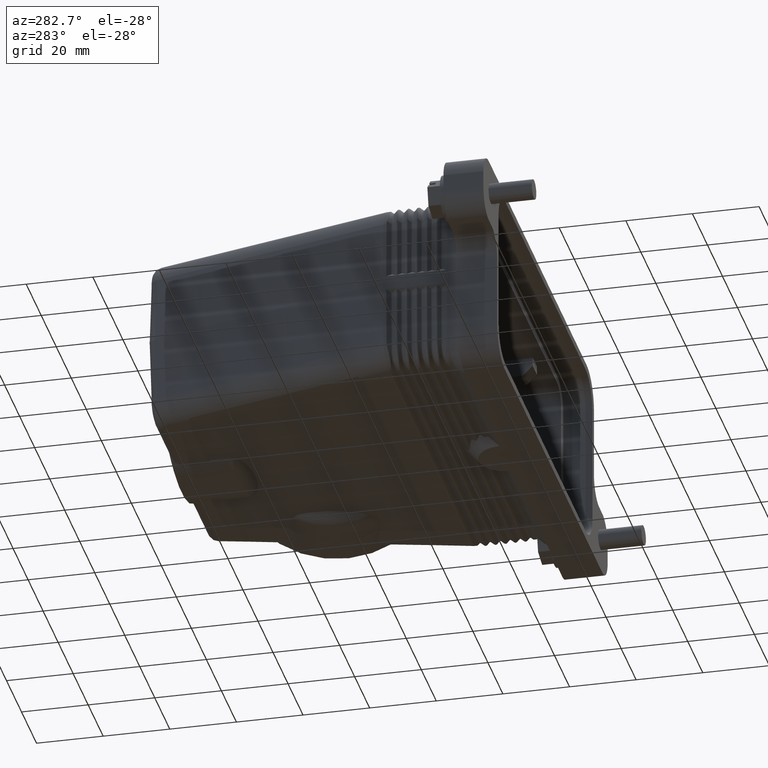
[diagram: clean part render]
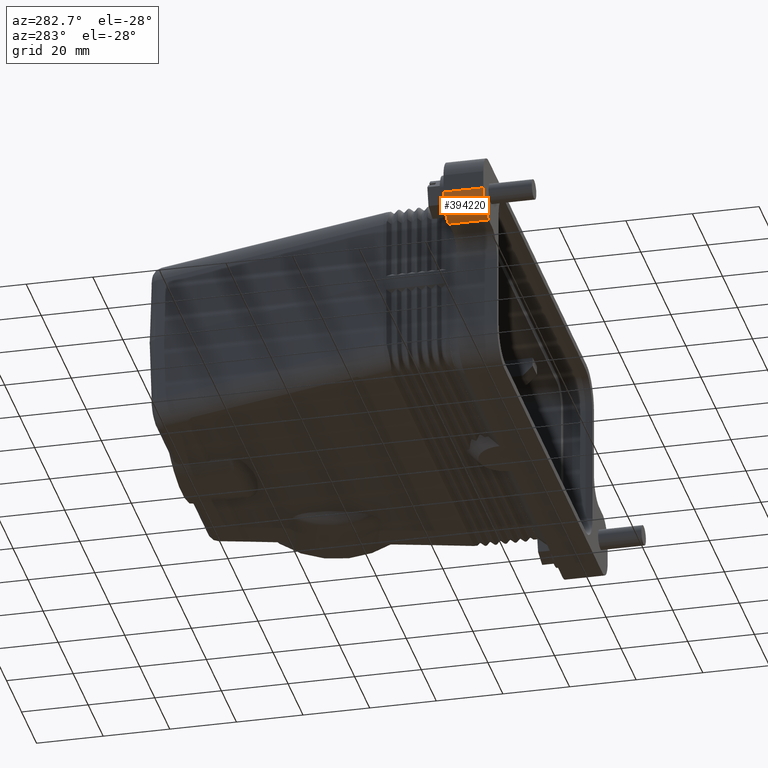
[diagram: same view with one face highlighted and labeled with its STEP entity id]
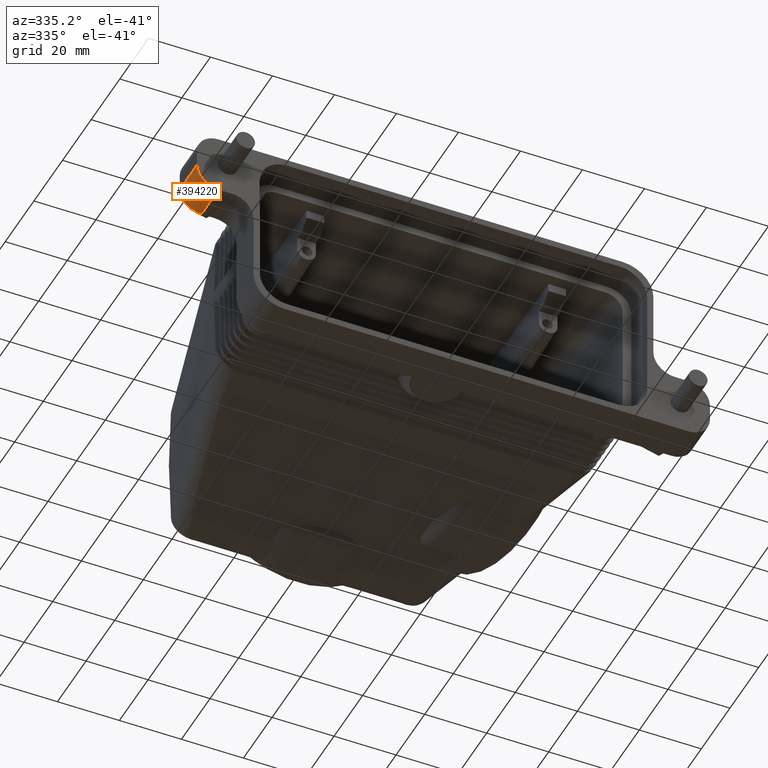
[diagram: same view with one face highlighted and labeled with its STEP entity id]
A machine part, auxiliary view. The second image highlights one B-rep face of the part: STEP entity #394220.
A second angle (auxiliary view) of the same face is appended — the face is thin or edge-on in the first view.
In plain terms, the highlighted cylindrical surface (edge-blend (fillet) strip) has radius 7 mm, axis along (0, -1, 0).
Its self-contained STEP definition (entity closure, byte-faithful):
#44750=CARTESIAN_POINT('',(-105.865094,8.294143,29.4912724675358));
#44760=VERTEX_POINT('',#44750);
#44790=CARTESIAN_POINT('',(-98.865094,8.294143,29.4912724675358));
#44800=DIRECTION('',(0.,-1.,0.));
#44810=DIRECTION('',(-1.,0.,0.));
#44820=AXIS2_PLACEMENT_3D('',#44790,#44800,#44810);
#44830=CIRCLE('',#44820,7.);
#44840=CARTESIAN_POINT('',(-98.865094,8.294143,22.4912724675358));
#44850=VERTEX_POINT('',#44840);
#44860=EDGE_CURVE('',#44760,#44850,#44830,.T.);
#332470=CARTESIAN_POINT('',(-105.865094,-3.705857,29.4912724675358));
#332480=VERTEX_POINT('',#332470);
#332510=CARTESIAN_POINT('',(-105.865094,0.,29.4912724675358));
#332520=DIRECTION('',(0.,1.,0.));
#332530=VECTOR('',#332520,1.);
#332540=LINE('',#332510,#332530);
#332550=EDGE_CURVE('',#332480,#44760,#332540,.T.);
#336110=CARTESIAN_POINT('',(-98.865094,-3.705857,22.4912724675358));
#336120=VERTEX_POINT('',#336110);
#336150=CARTESIAN_POINT('',(-98.865094,-3.705857,29.4912724675358));
#336160=DIRECTION('',(0.,-1.,0.));
#336170=DIRECTION('',(-1.,0.,0.));
#336180=AXIS2_PLACEMENT_3D('',#336150,#336160,#336170);
#336190=CIRCLE('',#336180,7.);
#336200=EDGE_CURVE('',#332480,#336120,#336190,.T.);
#371120=CARTESIAN_POINT('',(-98.865094,0.,22.4912724675358));
#371130=DIRECTION('',(0.,1.,0.));
#371140=VECTOR('',#371130,1.);
#371150=LINE('',#371120,#371140);
#371160=EDGE_CURVE('',#336120,#44850,#371150,.T.);
#394110=CARTESIAN_POINT('',(-98.865094,0.,29.4912724675358));
#394120=DIRECTION('',(0.,-1.,0.));
#394130=DIRECTION('',(-1.,0.,0.));
#394140=AXIS2_PLACEMENT_3D('',#394110,#394120,#394130);
#394150=CYLINDRICAL_SURFACE('',#394140,7.);
#394160=ORIENTED_EDGE('',*,*,#44860,.T.);
#394170=ORIENTED_EDGE('',*,*,#332550,.T.);
#394180=ORIENTED_EDGE('',*,*,#336200,.F.);
#394190=ORIENTED_EDGE('',*,*,#371160,.F.);
#394200=EDGE_LOOP('',(#394190,#394180,#394170,#394160));
#394210=FACE_OUTER_BOUND('',#394200,.T.);
#394220=ADVANCED_FACE('',(#394210),#394150,.T.);